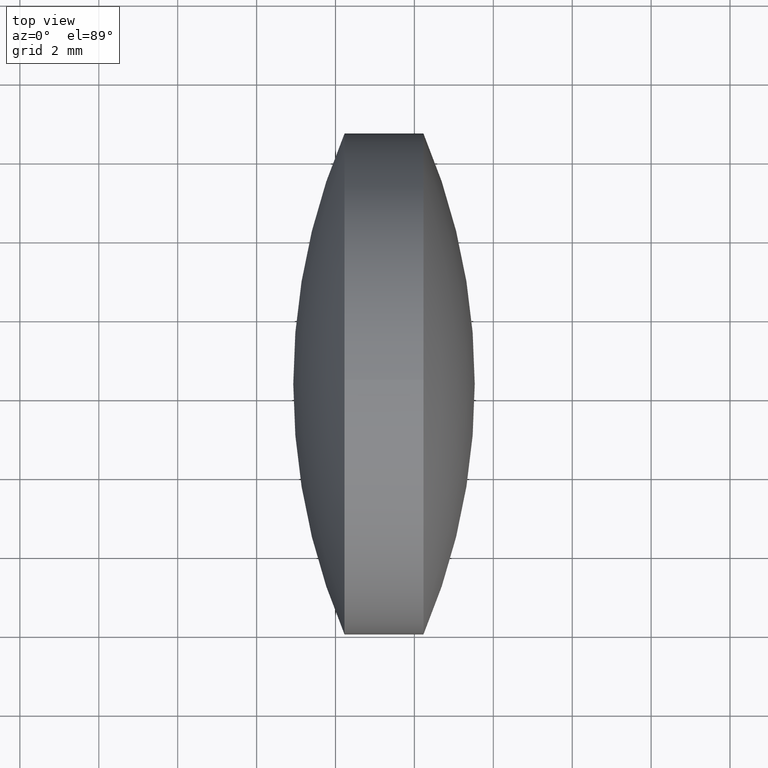
[diagram: clean part render]
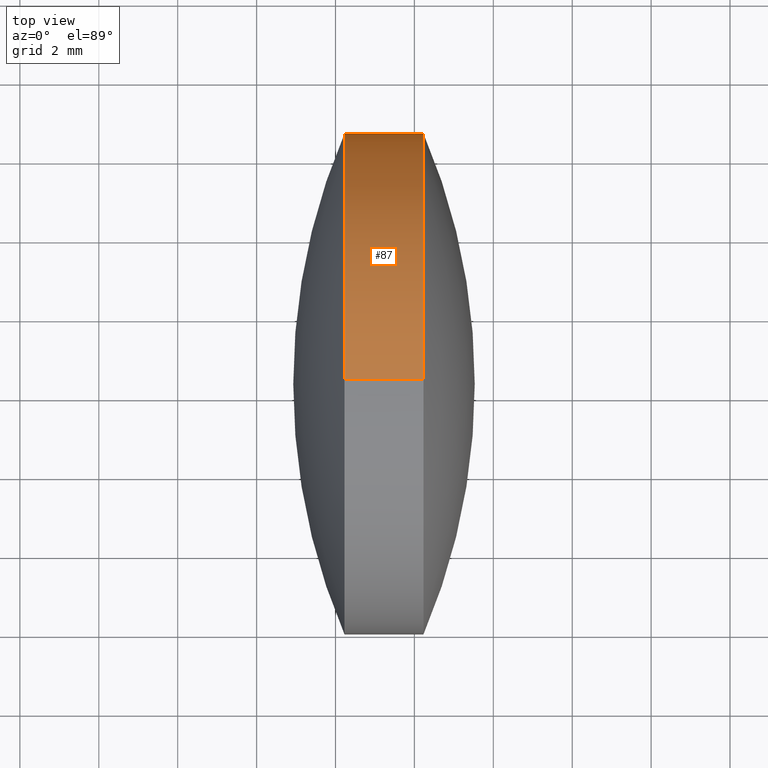
[diagram: same view with one face highlighted and labeled with its STEP entity id]
A machine part, top view. The second image highlights one B-rep face of the part: STEP entity #87.
In plain terms, the highlighted cylindrical surface (partial cylindrical patch) has radius 6.35 mm, axis along (-1, -0, -0).
Its self-contained STEP definition (entity closure, byte-faithful):
#2 = CARTESIAN_POINT ( 'NONE',  ( 42.22906260161698100, 24.30805651159239000, 0.0000000000000000000 ) ) ;
#7 = ORIENTED_EDGE ( 'NONE', *, *, #13, .F. ) ;
#13 = EDGE_CURVE ( 'NONE', #26, #312, #109, .T. ) ;
#14 = VECTOR ( 'NONE', #30, 1000.000000000000000 ) ;
#26 = VERTEX_POINT ( 'NONE', #286 ) ;
#30 = DIRECTION ( 'NONE',  ( -1.000000000000000000, -0.0000000000000000000, -0.0000000000000000000 ) ) ;
#49 = CIRCLE ( 'NONE', #173, 6.349999999999997900 ) ;
#61 = CARTESIAN_POINT ( 'NONE',  ( 44.22913117304555200, 30.65805651159239500, 7.776507174585687200E-016 ) ) ;
#63 = CARTESIAN_POINT ( 'NONE',  ( 44.22913117304555200, 24.30805651159239000, 0.0000000000000000000 ) ) ;
#64 = DIRECTION ( 'NONE',  ( -1.000000000000000000, -0.0000000000000000000, -0.0000000000000000000 ) ) ;
#77 = AXIS2_PLACEMENT_3D ( 'NONE', #181, #64, #158 ) ;
#80 = CARTESIAN_POINT ( 'NONE',  ( 39.65270067541857900, 24.30805651159239000, 0.0000000000000000000 ) ) ;
#82 = ORIENTED_EDGE ( 'NONE', *, *, #151, .T. ) ;
#83 = DIRECTION ( 'NONE',  ( 0.0000000000000000000, 0.0000000000000000000, 1.000000000000000000 ) ) ;
#84 = CYLINDRICAL_SURFACE ( 'NONE', #137, 6.349999999999997900 ) ;
#87 = ADVANCED_FACE ( 'NONE', ( #152 ), #84, .T. ) ;
#90 = CARTESIAN_POINT ( 'NONE',  ( 42.22906260161698100, 24.30805651159239000, -6.349999999999997900 ) ) ;
#92 = LINE ( 'NONE', #130, #122 ) ;
#109 = CIRCLE ( 'NONE', #112, 6.349999999999997900 ) ;
#112 = AXIS2_PLACEMENT_3D ( 'NONE', #228, #339, #281 ) ;
#122 = VECTOR ( 'NONE', #161, 1000.000000000000000 ) ;
#126 = ORIENTED_EDGE ( 'NONE', *, *, #197, .F. ) ;
#127 = AXIS2_PLACEMENT_3D ( 'NONE', #63, #238, #323 ) ;
#130 = CARTESIAN_POINT ( 'NONE',  ( 39.65270067541857900, 24.30805651159239000, 6.349999999999997900 ) ) ;
#137 = AXIS2_PLACEMENT_3D ( 'NONE', #80, #204, #83 ) ;
#148 = VERTEX_POINT ( 'NONE', #293 ) ;
#151 = EDGE_CURVE ( 'NONE', #148, #312, #225, .T. ) ;
#152 = FACE_OUTER_BOUND ( 'NONE', #259, .T. ) ;
#156 = EDGE_CURVE ( 'NONE', #294, #237, #92, .T. ) ;
#158 = DIRECTION ( 'NONE',  ( 0.0000000000000000000, 0.0000000000000000000, 1.000000000000000000 ) ) ;
#161 = DIRECTION ( 'NONE',  ( -1.000000000000000000, -0.0000000000000000000, -0.0000000000000000000 ) ) ;
#168 = EDGE_CURVE ( 'NONE', #183, #148, #297, .T. ) ;
#173 = AXIS2_PLACEMENT_3D ( 'NONE', #2, #236, #213 ) ;
#181 = CARTESIAN_POINT ( 'NONE',  ( 44.22913117304555200, 24.30805651159239000, 0.0000000000000000000 ) ) ;
#183 = VERTEX_POINT ( 'NONE', #61 ) ;
#197 = EDGE_CURVE ( 'NONE', #237, #26, #49, .T. ) ;
#204 = DIRECTION ( 'NONE',  ( -1.000000000000000000, -0.0000000000000000000, -0.0000000000000000000 ) ) ;
#208 = CARTESIAN_POINT ( 'NONE',  ( 44.22913117304555200, 24.30805651159239000, 6.349999999999997900 ) ) ;
#213 = DIRECTION ( 'NONE',  ( 0.0000000000000000000, 0.0000000000000000000, 1.000000000000000000 ) ) ;
#222 = CIRCLE ( 'NONE', #127, 6.349999999999997900 ) ;
#225 = LINE ( 'NONE', #318, #14 ) ;
#226 = ORIENTED_EDGE ( 'NONE', *, *, #156, .F. ) ;
#228 = CARTESIAN_POINT ( 'NONE',  ( 42.22906260161698100, 24.30805651159239000, 0.0000000000000000000 ) ) ;
#236 = DIRECTION ( 'NONE',  ( -1.000000000000000000, -0.0000000000000000000, -0.0000000000000000000 ) ) ;
#237 = VERTEX_POINT ( 'NONE', #341 ) ;
#238 = DIRECTION ( 'NONE',  ( -1.000000000000000000, -0.0000000000000000000, -0.0000000000000000000 ) ) ;
#247 = ORIENTED_EDGE ( 'NONE', *, *, #337, .T. ) ;
#259 = EDGE_LOOP ( 'NONE', ( #335, #82, #7, #126, #226, #247 ) ) ;
#281 = DIRECTION ( 'NONE',  ( 0.0000000000000000000, 0.0000000000000000000, 1.000000000000000000 ) ) ;
#286 = CARTESIAN_POINT ( 'NONE',  ( 42.22906260161698100, 30.65805651159238800, 0.0000000000000000000 ) ) ;
#293 = CARTESIAN_POINT ( 'NONE',  ( 44.22913117304555200, 24.30805651159239000, -6.349999999999997900 ) ) ;
#294 = VERTEX_POINT ( 'NONE', #208 ) ;
#297 = CIRCLE ( 'NONE', #77, 6.349999999999997900 ) ;
#312 = VERTEX_POINT ( 'NONE', #90 ) ;
#318 = CARTESIAN_POINT ( 'NONE',  ( 39.65270067541857900, 24.30805651159239000, -6.349999999999997900 ) ) ;
#323 = DIRECTION ( 'NONE',  ( 0.0000000000000000000, 0.0000000000000000000, 1.000000000000000000 ) ) ;
#335 = ORIENTED_EDGE ( 'NONE', *, *, #168, .T. ) ;
#337 = EDGE_CURVE ( 'NONE', #294, #183, #222, .T. ) ;
#339 = DIRECTION ( 'NONE',  ( -1.000000000000000000, -0.0000000000000000000, -0.0000000000000000000 ) ) ;
#341 = CARTESIAN_POINT ( 'NONE',  ( 42.22906260161698100, 24.30805651159239000, 6.349999999999997900 ) ) ;